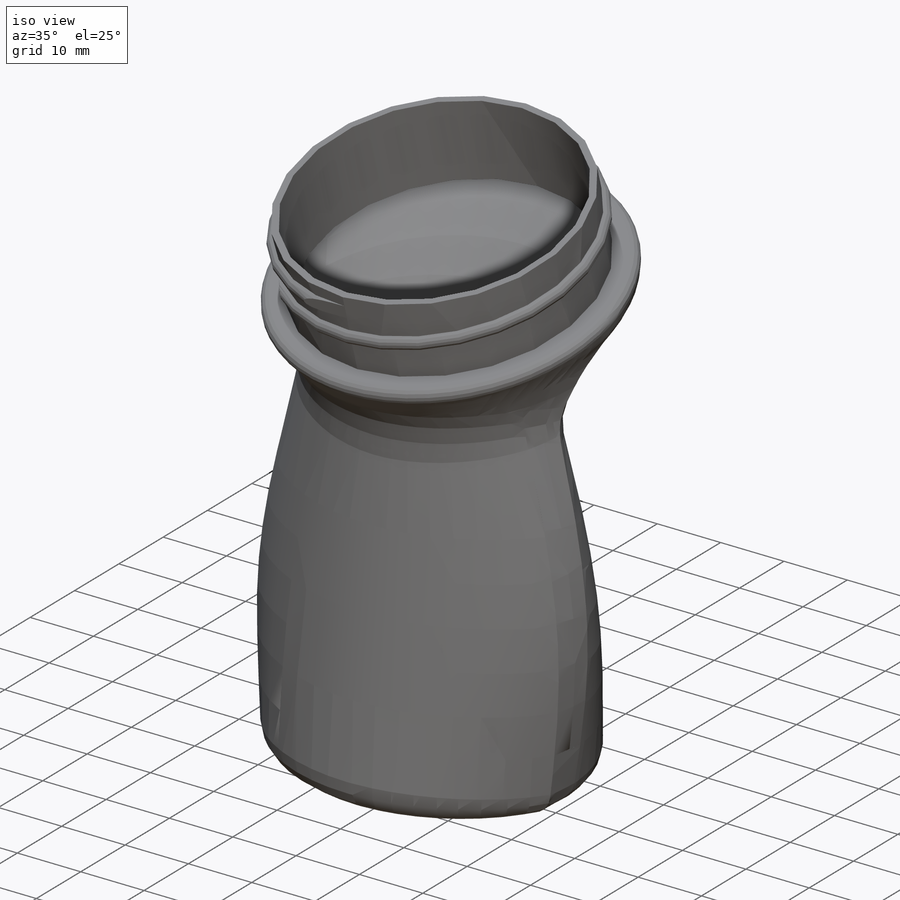
[diagram: iso view]
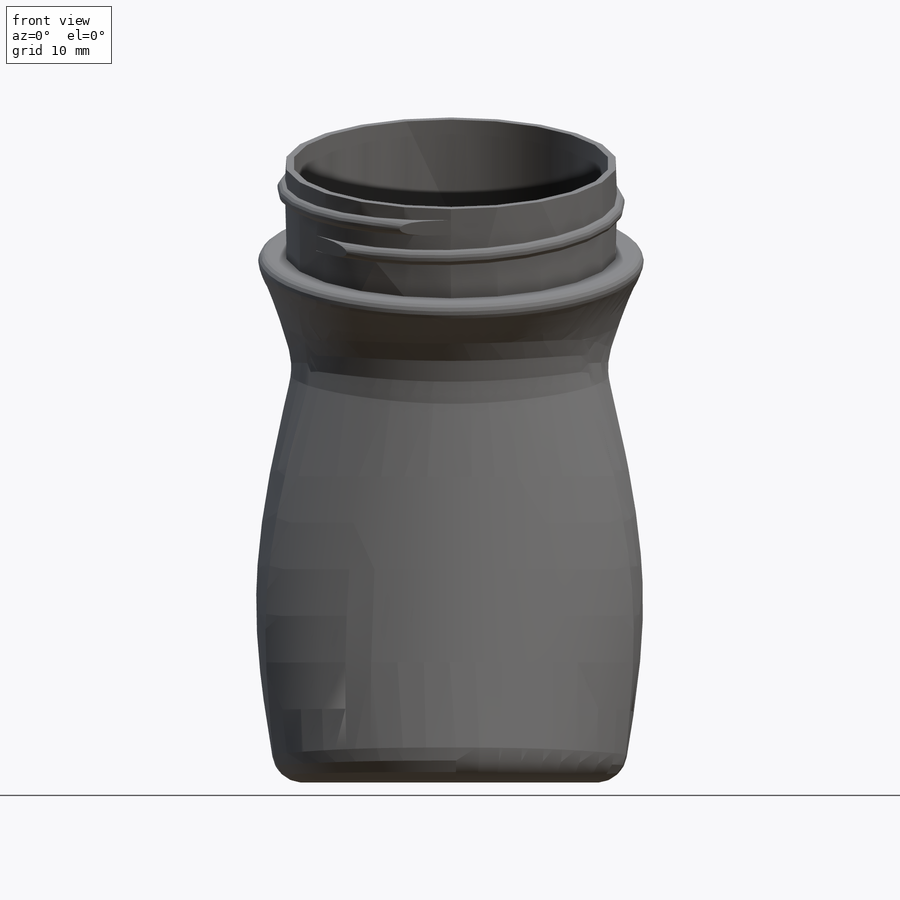
[diagram: front view]
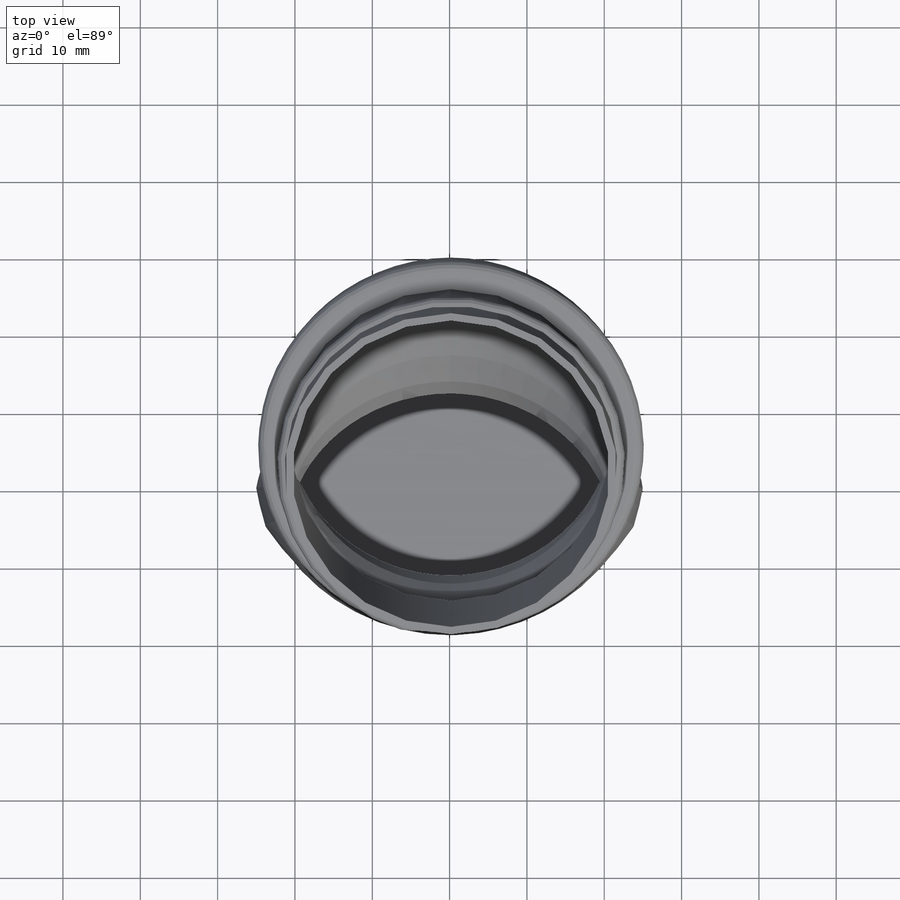
[diagram: top view]
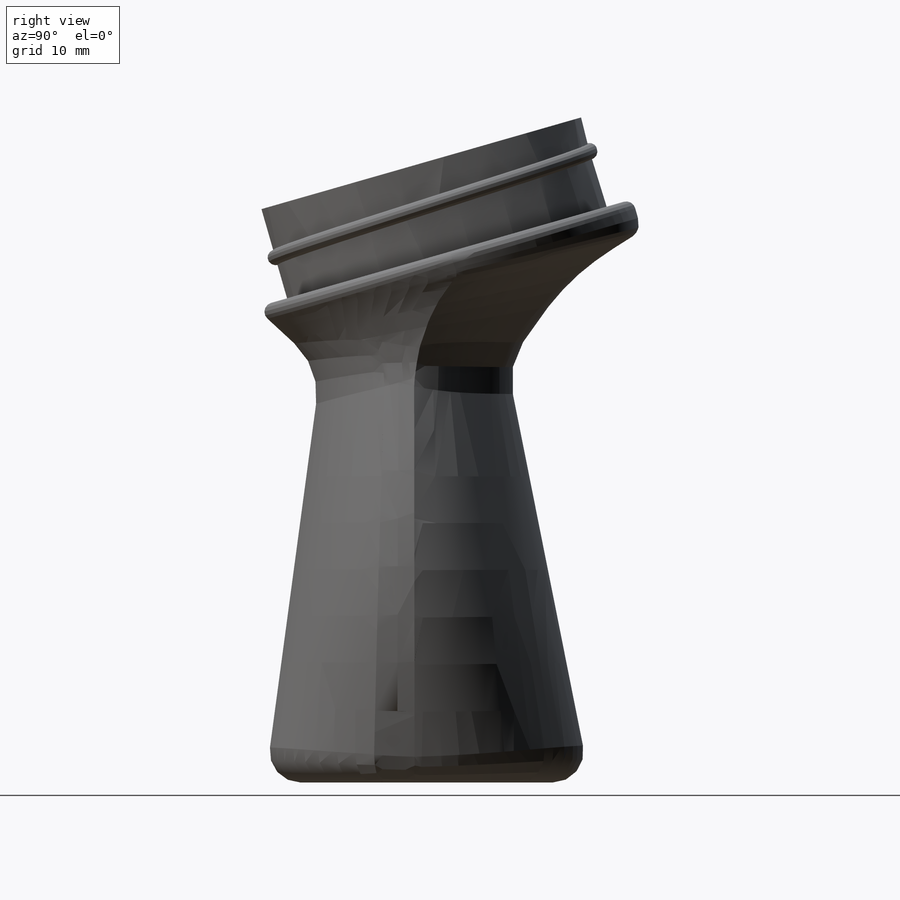
[diagram: right view]
SOLIDWORKS PART (.sldprt)
format: sldprt  version: not decoded by parser v0  size: 855,040 bytes
history: native  units: mm
features: sketch x16, plane x5, fillet x3, cut_extrude x2, material x1, extrude x1, shell x1, helix x1, sweep x1 (+13 scaffold rows collapsed)
feature tree (44):
  scaffold x13  (default folders/planes/origin — collapsed)
  material  "Material <not specified>"
  plane  "Plano1"  Offset=35mm
  plane  "Plano2"  Offset=53mm
  sketch  "Esboço1"  dims[c1.D1=11.0mm c1.D2=~21.909091mm c1.D4=~21.909091mm c2.D2=33.0mm c2.D3=38.0mm c3.D2=~117.220322mm c3.D1=19.0mm c4.D2=11.0mm c4.D1=19.0mm c4.D3=38.0mm c4.D4=~21.818182mm c5.D2=~10.909091mm c5.D3=38.0mm]
  sketch  "Esboço2"  dims[c1.D4=~24.179576mm c1.D5=21.5mm c1.D2=~46.614422mm c1.D1=21.5mm c2.D2=43.0mm c2.D3=6.0mm c2.D6=~5.063538mm c2.D1=5.0mm]
  sketch  "Esboço3"  dims[D1=22.0mm D2=22.0mm D3=24.0mm D4=24.0mm]
  sketch  "Esboço4"
  sketch  "Esboço5"
  sketch  "Esboço6"  dims[D1=53.0mm D2=22.0mm D3=24.0mm]
  sketch  "Esboço7"  dims[c1.D1=8.0mm c1.D2=~33.730634mm c2.D2=16.0deg c2.D3=4.0mm]
  plane  "Plano4"
  sketch  "Esboço8"
  sketch  "Esboço9"  dims[c1.D1=48.0mm c1.D2=48.0mm c2.D1=26.8339mm c2.D2=19.0mm c3.D1=2.5mm]
  sketch  "Esboço10"  dims[D1=2.5mm]
  sketch  "Esboço11"
  fillet  "Filete1"  Radius=10mm
  fillet  "Filete2"  Radius=3mm
  sketch  "Esboço12"  dims[D1=41.0mm D2=~8.073879mm]
  extrude  "Extrusão1"  Depth=13mm
  fillet  "Filete3"  Radius=0.2mm
  shell  "Casca1"  Thickness=1mm
  plane  "Plano5"  Offset=2.5mm
  sketch  "Esboço14"
  helix  "Hélice/Espiral1"  Pitch=4.6mm
  plane  "Plano6"
  sketch  "Esboço16"  dims[D1=~0.169912mm]
  sweep  "Varredura1"
  sketch  "Esboço 17"
  cut_extrude  "Cut-Extrude1"  Depth=10mm
  sketch  "Esboço 18"
  cut_extrude  "Cut-Extrude2"  Depth=10mm
decode coverage: 17 of 25 modeling features carry decoded parameters
note: ~ marks probable driven/reference dimensions
note: suppression state not decoded; provenance and decode notes live in map.json
